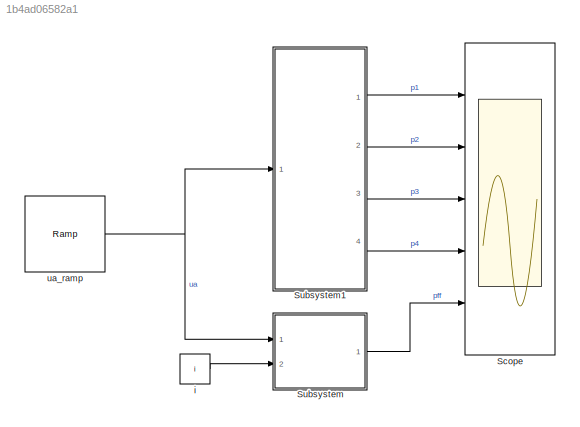
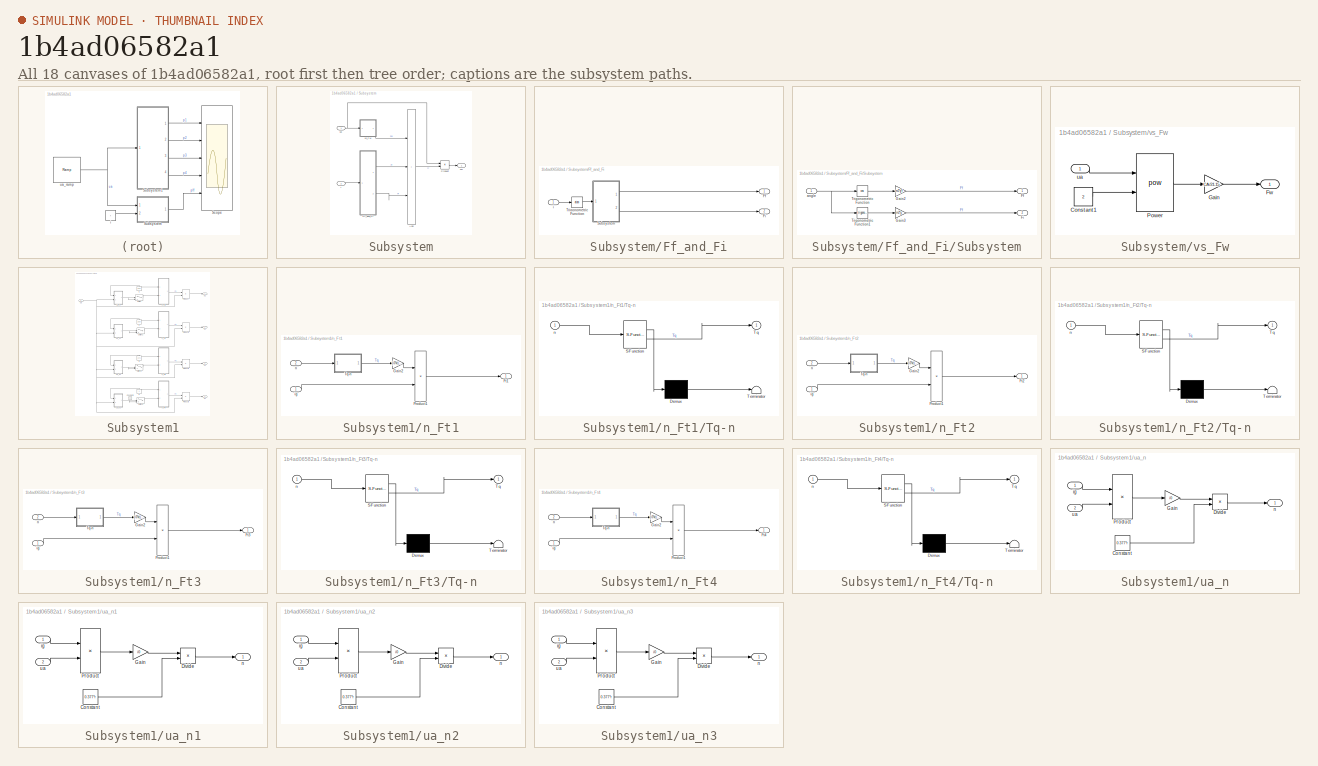
[diagram: thumbnail index - all 18 canvases of the model, root first then tree order]
MODEL slx_1b4ad06582a1
KIND model
CONFIG AbsTol = auto
CONFIG EnableMultiTasking = off
CONFIG FixedStep = auto
CONFIG MaxStep = auto
CONFIG MinStep = auto
CONFIG RelTol = 1e-3
CONFIG SampleTimeConstraint = Unconstrained
CONFIG SolverName = VariableStepAuto
CONFIG StartTime = 0.0
CONFIG StopTime = 11
BLOCK [Scope] Scope
  Floating = off
  NumInputPorts = 5
  Ports = [5]
  ScopeSpecificationString = Simulink.scopes.TimeScopeBlockCfg('CurrentConfiguration', extmgr.ConfigurationSet(extmgr.Configuration('Core','General UI',true,'FigureColor',[1 1 1]),extmgr.Configuration('Core','Source UI',true),extmgr.Configuration('Sources','WiredSimulink',true),extmgr.Configuration('Visuals','Time Domain',true,'SerializedDisplays',{struct('MinYLimReal','0','MaxYLimReal','210466.6882','YLabelReal','','MinYLimM...<+1719ch>
BLOCK [SubSystem] Subsystem
  Ports = [2, 1]
  RequestExecContextInheritance = off
BLOCK [Sum] Subsystem/Add
  IconShape = rectangular
  Inputs = +++
  Ports = [3, 1]
BLOCK [SubSystem] Subsystem/Ff_and_Fi
  Ports = [1, 2]
  RequestExecContextInheritance = off
BLOCK [Outport] Subsystem/Ff_and_Fi/Ff
BLOCK [Outport] Subsystem/Ff_and_Fi/Fi
  Port = 2
BLOCK [SubSystem] Subsystem/Ff_and_Fi/Subsystem
  Ports = [1, 2]
  RequestExecContextInheritance = off
BLOCK [Outport] Subsystem/Ff_and_Fi/Subsystem/Ff
BLOCK [Outport] Subsystem/Ff_and_Fi/Subsystem/Fi
  Port = 2
BLOCK [Gain] Subsystem/Ff_and_Fi/Subsystem/Gain2
  Gain = m2*g*f
BLOCK [Gain] Subsystem/Ff_and_Fi/Subsystem/Gain3
  Gain = m2*g
BLOCK [Trigonometry] Subsystem/Ff_and_Fi/Subsystem/Trigonometric Function
  Operator = cos
  Ports = [1, 1]
BLOCK [Trigonometry] Subsystem/Ff_and_Fi/Subsystem/Trigonometric Function1
  Ports = [1, 1]
BLOCK [Inport] Subsystem/Ff_and_Fi/Subsystem/angle
BLOCK [Trigonometry] Subsystem/Ff_and_Fi/Trigonometric Function
  Operator = atan
  Ports = [1, 1]
BLOCK [Inport] Subsystem/Ff_and_Fi/i
BLOCK [Product] Subsystem/Product
  Ports = [2, 1]
BLOCK [Inport] Subsystem/i
  Port = 2
BLOCK [Outport] Subsystem/pff
BLOCK [Inport] Subsystem/ua
BLOCK [SubSystem] Subsystem/vs_Fw
  Ports = [1, 1]
  RequestExecContextInheritance = off
BLOCK [Constant] Subsystem/vs_Fw/Constant1
  Value = 2
BLOCK [Outport] Subsystem/vs_Fw/Fw
BLOCK [Gain] Subsystem/vs_Fw/Gain
  Gain = CA/21.15
BLOCK [Math] Subsystem/vs_Fw/Power
  Operator = pow
  Ports = [2, 1]
BLOCK [Inport] Subsystem/vs_Fw/ua
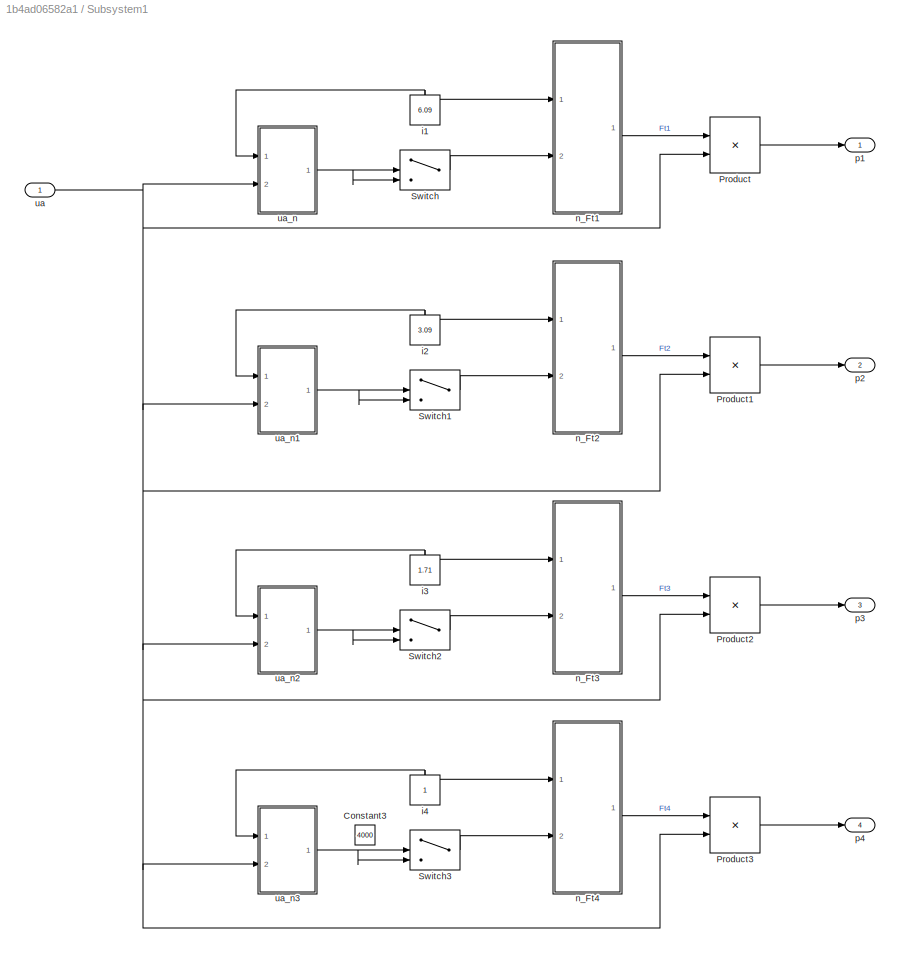
BLOCK [SubSystem] Subsystem1
  Ports = [1, 4]
  RequestExecContextInheritance = off
BLOCK [Constant] Subsystem1/Constant3
  Value = 4000
BLOCK [Product] Subsystem1/Product
  Ports = [2, 1]
BLOCK [Product] Subsystem1/Product1
  Ports = [2, 1]
BLOCK [Product] Subsystem1/Product2
  Ports = [2, 1]
BLOCK [Product] Subsystem1/Product3
  Ports = [2, 1]
BLOCK [Switch] Subsystem1/Switch
  Criteria = u2 > Threshold
  InputSameDT = off
  SaturateOnIntegerOverflow = off
  Threshold = 4000
BLOCK [Switch] Subsystem1/Switch1
  Criteria = u2 > Threshold
  InputSameDT = off
  SaturateOnIntegerOverflow = off
  Threshold = 4000
BLOCK [Switch] Subsystem1/Switch2
  Criteria = u2 > Threshold
  InputSameDT = off
  SaturateOnIntegerOverflow = off
  Threshold = 4000
BLOCK [Switch] Subsystem1/Switch3
  Criteria = u2 > Threshold
  InputSameDT = off
  SaturateOnIntegerOverflow = off
  Threshold = 4000
BLOCK [Constant] Subsystem1/i1
  NameLocation = right
  Value = 6.09
BLOCK [Constant] Subsystem1/i2
  NameLocation = right
  Value = 3.09
BLOCK [Constant] Subsystem1/i3
  NameLocation = right
  Value = 1.71
BLOCK [Constant] Subsystem1/i4
  NameLocation = right
BLOCK [SubSystem] Subsystem1/n_Ft1
  Ports = [2, 1]
  RequestExecContextInheritance = off
BLOCK [Outport] Subsystem1/n_Ft1/Ft1
BLOCK [Gain] Subsystem1/n_Ft1/Gain2
  Gain = (i0*kt)/r
BLOCK [Product] Subsystem1/n_Ft1/Product1
  Ports = [2, 1]
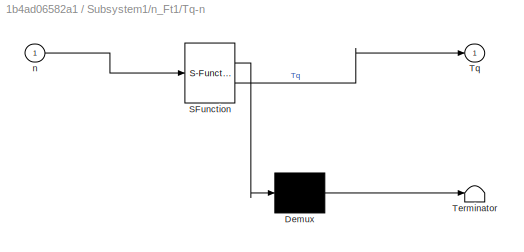
BLOCK [SubSystem] Subsystem1/n_Ft1/Tq-n
  ErrorFcn = Stateflow.Translate.translate
  PermitHierarchicalResolution = ExplicitOnly
  Ports = [1, 1]
  RequestExecContextInheritance = off
  SFBlockType = MATLAB Function
  TreatAsAtomicUnit = on
BLOCK [Demux] Subsystem1/n_Ft1/Tq-n/ Demux 
  Outputs = 1
  Ports = [1, 1]
BLOCK [S-Function] Subsystem1/n_Ft1/Tq-n/ SFunction 
  EnableBusSupport = on
  FunctionName = sf_sfun
  PortCounts = [1 2]
  Ports = [1, 2]
  SFcnIsStateOwnerBlock = off
  SFunctionDeploymentMode = off
  Tag = Stateflow S-Function 1
BLOCK [Terminator] Subsystem1/n_Ft1/Tq-n/ Terminator 
BLOCK [Outport] Subsystem1/n_Ft1/Tq-n/Tq
  VectorParamsAs1DForOutWhenUnconnected = off
BLOCK [Inport] Subsystem1/n_Ft1/Tq-n/n
BLOCK [Inport] Subsystem1/n_Ft1/ig
BLOCK [Inport] Subsystem1/n_Ft1/n
  Port = 2
BLOCK [SubSystem] Subsystem1/n_Ft2
  Ports = [2, 1]
  RequestExecContextInheritance = off
BLOCK [Outport] Subsystem1/n_Ft2/Ft2
BLOCK [Gain] Subsystem1/n_Ft2/Gain2
  Gain = (i0*kt)/r
BLOCK [Product] Subsystem1/n_Ft2/Product1
  Ports = [2, 1]
BLOCK [SubSystem] Subsystem1/n_Ft2/Tq-n
  ErrorFcn = Stateflow.Translate.translate
  PermitHierarchicalResolution = ExplicitOnly
  Ports = [1, 1]
  RequestExecContextInheritance = off
  SFBlockType = MATLAB Function
  TreatAsAtomicUnit = on
BLOCK [Demux] Subsystem1/n_Ft2/Tq-n/ Demux 
  Outputs = 1
  Ports = [1, 1]
BLOCK [S-Function] Subsystem1/n_Ft2/Tq-n/ SFunction 
  EnableBusSupport = on
  FunctionName = sf_sfun
  PortCounts = [1 2]
  Ports = [1, 2]
  SFcnIsStateOwnerBlock = off
  SFunctionDeploymentMode = off
  Tag = Stateflow S-Function 4
BLOCK [Terminator] Subsystem1/n_Ft2/Tq-n/ Terminator 
BLOCK [Outport] Subsystem1/n_Ft2/Tq-n/Tq
  VectorParamsAs1DForOutWhenUnconnected = off
BLOCK [Inport] Subsystem1/n_Ft2/Tq-n/n
BLOCK [Inport] Subsystem1/n_Ft2/ig
BLOCK [Inport] Subsystem1/n_Ft2/n
  Port = 2
BLOCK [SubSystem] Subsystem1/n_Ft3
  Ports = [2, 1]
  RequestExecContextInheritance = off
BLOCK [Outport] Subsystem1/n_Ft3/Ft3
BLOCK [Gain] Subsystem1/n_Ft3/Gain2
  Gain = (i0*kt)/r
BLOCK [Product] Subsystem1/n_Ft3/Product1
  Ports = [2, 1]
BLOCK [SubSystem] Subsystem1/n_Ft3/Tq-n
  ErrorFcn = Stateflow.Translate.translate
  PermitHierarchicalResolution = ExplicitOnly
  Ports = [1, 1]
  RequestExecContextInheritance = off
  SFBlockType = MATLAB Function
  TreatAsAtomicUnit = on
BLOCK [Demux] Subsystem1/n_Ft3/Tq-n/ Demux 
  Outputs = 1
  Ports = [1, 1]
BLOCK [S-Function] Subsystem1/n_Ft3/Tq-n/ SFunction 
  EnableBusSupport = on
  FunctionName = sf_sfun
  PortCounts = [1 2]
  Ports = [1, 2]
  SFcnIsStateOwnerBlock = off
  SFunctionDeploymentMode = off
  Tag = Stateflow S-Function 7
BLOCK [Terminator] Subsystem1/n_Ft3/Tq-n/ Terminator 
BLOCK [Outport] Subsystem1/n_Ft3/Tq-n/Tq
  VectorParamsAs1DForOutWhenUnconnected = off
BLOCK [Inport] Subsystem1/n_Ft3/Tq-n/n
BLOCK [Inport] Subsystem1/n_Ft3/ig
BLOCK [Inport] Subsystem1/n_Ft3/n
  Port = 2
BLOCK [SubSystem] Subsystem1/n_Ft4
  Ports = [2, 1]
  RequestExecContextInheritance = off
BLOCK [Outport] Subsystem1/n_Ft4/Ft4
BLOCK [Gain] Subsystem1/n_Ft4/Gain2
  Gain = (i0*kt)/r
BLOCK [Product] Subsystem1/n_Ft4/Product1
  Ports = [2, 1]
BLOCK [SubSystem] Subsystem1/n_Ft4/Tq-n
  ErrorFcn = Stateflow.Translate.translate
  PermitHierarchicalResolution = ExplicitOnly
  Ports = [1, 1]
  RequestExecContextInheritance = off
  SFBlockType = MATLAB Function
  TreatAsAtomicUnit = on
BLOCK [Demux] Subsystem1/n_Ft4/Tq-n/ Demux 
  Outputs = 1
  Ports = [1, 1]
BLOCK [S-Function] Subsystem1/n_Ft4/Tq-n/ SFunction 
  EnableBusSupport = on
  FunctionName = sf_sfun
  PortCounts = [1 2]
  Ports = [1, 2]
  SFcnIsStateOwnerBlock = off
  SFunctionDeploymentMode = off
  Tag = Stateflow S-Function 8
BLOCK [Terminator] Subsystem1/n_Ft4/Tq-n/ Terminator 
BLOCK [Outport] Subsystem1/n_Ft4/Tq-n/Tq
  VectorParamsAs1DForOutWhenUnconnected = off
BLOCK [Inport] Subsystem1/n_Ft4/Tq-n/n
BLOCK [Inport] Subsystem1/n_Ft4/ig
BLOCK [Inport] Subsystem1/n_Ft4/n
  Port = 2
BLOCK [Outport] Subsystem1/p1
BLOCK [Outport] Subsystem1/p2
  Port = 2
BLOCK [Outport] Subsystem1/p3
  Port = 3
BLOCK [Outport] Subsystem1/p4
  Port = 4
BLOCK [Inport] Subsystem1/ua
BLOCK [SubSystem] Subsystem1/ua_n
  Ports = [2, 1]
  RequestExecContextInheritance = off
BLOCK [Constant] Subsystem1/ua_n/Constant
  Value = 0.377*r
BLOCK [Product] Subsystem1/ua_n/Divide
  Inputs = */
  Ports = [2, 1]
BLOCK [Gain] Subsystem1/ua_n/Gain
  Gain = i0
BLOCK [Product] Subsystem1/ua_n/Product
  Ports = [2, 1]
BLOCK [Inport] Subsystem1/ua_n/ig
BLOCK [Outport] Subsystem1/ua_n/n
BLOCK [Inport] Subsystem1/ua_n/ua
  Port = 2
BLOCK [SubSystem] Subsystem1/ua_n1
  Ports = [2, 1]
  RequestExecContextInheritance = off
BLOCK [Constant] Subsystem1/ua_n1/Constant
  Value = 0.377*r
BLOCK [Product] Subsystem1/ua_n1/Divide
  Inputs = */
  Ports = [2, 1]
BLOCK [Gain] Subsystem1/ua_n1/Gain
  Gain = i0
BLOCK [Product] Subsystem1/ua_n1/Product
  Ports = [2, 1]
BLOCK [Inport] Subsystem1/ua_n1/ig
BLOCK [Outport] Subsystem1/ua_n1/n
BLOCK [Inport] Subsystem1/ua_n1/ua
  Port = 2
BLOCK [SubSystem] Subsystem1/ua_n2
  Ports = [2, 1]
  RequestExecContextInheritance = off
BLOCK [Constant] Subsystem1/ua_n2/Constant
  Value = 0.377*r
BLOCK [Product] Subsystem1/ua_n2/Divide
  Inputs = */
  Ports = [2, 1]
BLOCK [Gain] Subsystem1/ua_n2/Gain
  Gain = i0
BLOCK [Product] Subsystem1/ua_n2/Product
  Ports = [2, 1]
BLOCK [Inport] Subsystem1/ua_n2/ig
BLOCK [Outport] Subsystem1/ua_n2/n
BLOCK [Inport] Subsystem1/ua_n2/ua
  Port = 2
BLOCK [SubSystem] Subsystem1/ua_n3
  Ports = [2, 1]
  RequestExecContextInheritance = off
BLOCK [Constant] Subsystem1/ua_n3/Constant
  Value = 0.377*r
BLOCK [Product] Subsystem1/ua_n3/Divide
  Inputs = */
  Ports = [2, 1]
BLOCK [Gain] Subsystem1/ua_n3/Gain
  Gain = i0
BLOCK [Product] Subsystem1/ua_n3/Product
  Ports = [2, 1]
BLOCK [Inport] Subsystem1/ua_n3/ig
BLOCK [Outport] Subsystem1/ua_n3/n
BLOCK [Inport] Subsystem1/ua_n3/ua
  Port = 2
BLOCK [Constant] i
  Value = i
BLOCK [Reference] ua_ramp  REF=simulink/Sources/Ramp
  Ports = [0, 1]
  SourceBlock = simulink/Sources/Ramp
  SourceProductBaseCode = SL
  SourceType = Ramp
LINE Subsystem/Add:1 -> Subsystem/Product:2
LINE Subsystem/Ff_and_Fi/Subsystem/Gain2:1 -> Subsystem/Ff_and_Fi/Subsystem/Ff:1
LINE Subsystem/Ff_and_Fi/Subsystem/Gain3:1 -> Subsystem/Ff_and_Fi/Subsystem/Fi:1
LINE Subsystem/Ff_and_Fi/Subsystem/Trigonometric Function1:1 -> Subsystem/Ff_and_Fi/Subsystem/Gain3:1
LINE Subsystem/Ff_and_Fi/Subsystem/Trigonometric Function:1 -> Subsystem/Ff_and_Fi/Subsystem/Gain2:1
NET Subsystem/Ff_and_Fi/Subsystem/angle:1 -> Subsystem/Ff_and_Fi/Subsystem/Trigonometric Function1:1, Subsystem/Ff_and_Fi/Subsystem/Trigonometric Function:1
LINE Subsystem/Ff_and_Fi/Subsystem:1 -> Subsystem/Ff_and_Fi/Ff:1
LINE Subsystem/Ff_and_Fi/Subsystem:2 -> Subsystem/Ff_and_Fi/Fi:1
LINE Subsystem/Ff_and_Fi/Trigonometric Function:1 -> Subsystem/Ff_and_Fi/Subsystem:1
LINE Subsystem/Ff_and_Fi/i:1 -> Subsystem/Ff_and_Fi/Trigonometric Function:1
LINE Subsystem/Ff_and_Fi:1 -> Subsystem/Add:2
LINE Subsystem/Ff_and_Fi:2 -> Subsystem/Add:3
LINE Subsystem/Product:1 -> Subsystem/pff:1
LINE Subsystem/i:1 -> Subsystem/Ff_and_Fi:1
NET Subsystem/ua:1 -> Subsystem/Product:1, Subsystem/vs_Fw:1
LINE Subsystem/vs_Fw/Constant1:1 -> Subsystem/vs_Fw/Power:2
LINE Subsystem/vs_Fw/Gain:1 -> Subsystem/vs_Fw/Fw:1
LINE Subsystem/vs_Fw/Power:1 -> Subsystem/vs_Fw/Gain:1
LINE Subsystem/vs_Fw/ua:1 -> Subsystem/vs_Fw/Power:1
LINE Subsystem/vs_Fw:1 -> Subsystem/Add:1
LINE Subsystem1/Product1:1 -> Subsystem1/p2:1
LINE Subsystem1/Product2:1 -> Subsystem1/p3:1
LINE Subsystem1/Product3:1 -> Subsystem1/p4:1
LINE Subsystem1/Product:1 -> Subsystem1/p1:1
LINE Subsystem1/Switch1:1 -> Subsystem1/n_Ft2:2
LINE Subsystem1/Switch2:1 -> Subsystem1/n_Ft3:2
LINE Subsystem1/Switch3:1 -> Subsystem1/n_Ft4:2
LINE Subsystem1/Switch:1 -> Subsystem1/n_Ft1:2
NET Subsystem1/i1:1 -> Subsystem1/n_Ft1:1, Subsystem1/ua_n:1
NET Subsystem1/i2:1 -> Subsystem1/n_Ft2:1, Subsystem1/ua_n1:1
NET Subsystem1/i3:1 -> Subsystem1/n_Ft3:1, Subsystem1/ua_n2:1
NET Subsystem1/i4:1 -> Subsystem1/n_Ft4:1, Subsystem1/ua_n3:1
LINE Subsystem1/n_Ft1/Gain2:1 -> Subsystem1/n_Ft1/Product1:1
LINE Subsystem1/n_Ft1/Product1:1 -> Subsystem1/n_Ft1/Ft1:1
LINE Subsystem1/n_Ft1/Tq-n:1 -> Subsystem1/n_Ft1/Gain2:1
LINE Subsystem1/n_Ft1/ig:1 -> Subsystem1/n_Ft1/Product1:2
LINE Subsystem1/n_Ft1/n:1 -> Subsystem1/n_Ft1/Tq-n:1
LINE Subsystem1/n_Ft1:1 -> Subsystem1/Product:1
LINE Subsystem1/n_Ft2/Gain2:1 -> Subsystem1/n_Ft2/Product1:1
LINE Subsystem1/n_Ft2/Product1:1 -> Subsystem1/n_Ft2/Ft2:1
LINE Subsystem1/n_Ft2/Tq-n:1 -> Subsystem1/n_Ft2/Gain2:1
LINE Subsystem1/n_Ft2/ig:1 -> Subsystem1/n_Ft2/Product1:2
LINE Subsystem1/n_Ft2/n:1 -> Subsystem1/n_Ft2/Tq-n:1
LINE Subsystem1/n_Ft2:1 -> Subsystem1/Product1:1
LINE Subsystem1/n_Ft3/Gain2:1 -> Subsystem1/n_Ft3/Product1:1
LINE Subsystem1/n_Ft3/Product1:1 -> Subsystem1/n_Ft3/Ft3:1
LINE Subsystem1/n_Ft3/Tq-n:1 -> Subsystem1/n_Ft3/Gain2:1
LINE Subsystem1/n_Ft3/ig:1 -> Subsystem1/n_Ft3/Product1:2
LINE Subsystem1/n_Ft3/n:1 -> Subsystem1/n_Ft3/Tq-n:1
LINE Subsystem1/n_Ft3:1 -> Subsystem1/Product2:1
LINE Subsystem1/n_Ft4/Gain2:1 -> Subsystem1/n_Ft4/Product1:1
LINE Subsystem1/n_Ft4/Product1:1 -> Subsystem1/n_Ft4/Ft4:1
LINE Subsystem1/n_Ft4/Tq-n:1 -> Subsystem1/n_Ft4/Gain2:1
LINE Subsystem1/n_Ft4/ig:1 -> Subsystem1/n_Ft4/Product1:2
LINE Subsystem1/n_Ft4/n:1 -> Subsystem1/n_Ft4/Tq-n:1
LINE Subsystem1/n_Ft4:1 -> Subsystem1/Product3:1
NET Subsystem1/ua:1 -> Subsystem1/Product1:2, Subsystem1/Product2:2, Subsystem1/Product3:2, Subsystem1/Product:2, Subsystem1/ua_n1:2, Subsystem1/ua_n2:2, Subsystem1/ua_n3:2, Subsystem1/ua_n:2
LINE Subsystem1/ua_n/Constant:1 -> Subsystem1/ua_n/Divide:2
LINE Subsystem1/ua_n/Divide:1 -> Subsystem1/ua_n/n:1
LINE Subsystem1/ua_n/Gain:1 -> Subsystem1/ua_n/Divide:1
LINE Subsystem1/ua_n/Product:1 -> Subsystem1/ua_n/Gain:1
LINE Subsystem1/ua_n/ig:1 -> Subsystem1/ua_n/Product:1
LINE Subsystem1/ua_n/ua:1 -> Subsystem1/ua_n/Product:2
LINE Subsystem1/ua_n1/Constant:1 -> Subsystem1/ua_n1/Divide:2
LINE Subsystem1/ua_n1/Divide:1 -> Subsystem1/ua_n1/n:1
LINE Subsystem1/ua_n1/Gain:1 -> Subsystem1/ua_n1/Divide:1
LINE Subsystem1/ua_n1/Product:1 -> Subsystem1/ua_n1/Gain:1
LINE Subsystem1/ua_n1/ig:1 -> Subsystem1/ua_n1/Product:1
LINE Subsystem1/ua_n1/ua:1 -> Subsystem1/ua_n1/Product:2
NET Subsystem1/ua_n1:1 -> Subsystem1/Switch1:2, Subsystem1/Switch1:3
LINE Subsystem1/ua_n2/Constant:1 -> Subsystem1/ua_n2/Divide:2
LINE Subsystem1/ua_n2/Divide:1 -> Subsystem1/ua_n2/n:1
LINE Subsystem1/ua_n2/Gain:1 -> Subsystem1/ua_n2/Divide:1
LINE Subsystem1/ua_n2/Product:1 -> Subsystem1/ua_n2/Gain:1
LINE Subsystem1/ua_n2/ig:1 -> Subsystem1/ua_n2/Product:1
LINE Subsystem1/ua_n2/ua:1 -> Subsystem1/ua_n2/Product:2
NET Subsystem1/ua_n2:1 -> Subsystem1/Switch2:2, Subsystem1/Switch2:3
LINE Subsystem1/ua_n3/Constant:1 -> Subsystem1/ua_n3/Divide:2
LINE Subsystem1/ua_n3/Divide:1 -> Subsystem1/ua_n3/n:1
LINE Subsystem1/ua_n3/Gain:1 -> Subsystem1/ua_n3/Divide:1
LINE Subsystem1/ua_n3/Product:1 -> Subsystem1/ua_n3/Gain:1
LINE Subsystem1/ua_n3/ig:1 -> Subsystem1/ua_n3/Product:1
LINE Subsystem1/ua_n3/ua:1 -> Subsystem1/ua_n3/Product:2
NET Subsystem1/ua_n3:1 -> Subsystem1/Switch3:2, Subsystem1/Switch3:3
NET Subsystem1/ua_n:1 -> Subsystem1/Switch:2, Subsystem1/Switch:3
LINE Subsystem1:1 -> Scope:1
LINE Subsystem1:2 -> Scope:2
LINE Subsystem1:3 -> Scope:3
LINE Subsystem1:4 -> Scope:4
LINE Subsystem:1 -> Scope:5
LINE i:1 -> Subsystem:2
NET ua_ramp:1 -> Subsystem1:1, Subsystem:1
note: NET lines group one-source signal fan-out (src -> all destinations, sorted); 1:1 wires keep LINE
CHART Subsystem1/n_Ft2/Tq-n states=1 transitions=1
  STATE_LABEL 'eML_blk_kernel()'
  STATE_LABEL 'SCRIPT:\nfunction Tq = fcn(n)\n%#codegen\n\nTq = -19.313+295.27*(n/1000)-165.44*(n/1000)^2+40.874*(n/1000)^3-3.8445*(n/1000)^4;'
CHART Subsystem1/n_Ft3/Tq-n states=1 transitions=1
  STATE_LABEL 'eML_blk_kernel()'
  STATE_LABEL 'SCRIPT:\nfunction Tq = fcn(n)\n%#codegen\n\nTq = -19.313+295.27*(n/1000)-165.44*(n/1000)^2+40.874*(n/1000)^3-3.8445*(n/1000)^4;'
CHART Subsystem1/n_Ft4/Tq-n states=1 transitions=1
  STATE_LABEL 'eML_blk_kernel()'
  STATE_LABEL 'SCRIPT:\nfunction Tq = fcn(n)\n%#codegen\n\nTq = -19.313+295.27*(n/1000)-165.44*(n/1000)^2+40.874*(n/1000)^3-3.8445*(n/1000)^4;'
CHART Subsystem1/n_Ft1/Tq-n states=1 transitions=1
  STATE_LABEL 'eML_blk_kernel()'
  STATE_LABEL 'SCRIPT:\nfunction Tq = fcn(n)\n%#codegen\n\nTq = -19.313+295.27*(n/1000)-165.44*(n/1000)^2+40.874*(n/1000)^3-3.8445*(n/1000)^4;'
CHART  states=0 transitions=0
CHART  states=0 transitions=0
CHART  states=0 transitions=0
CHART  states=0 transitions=0
